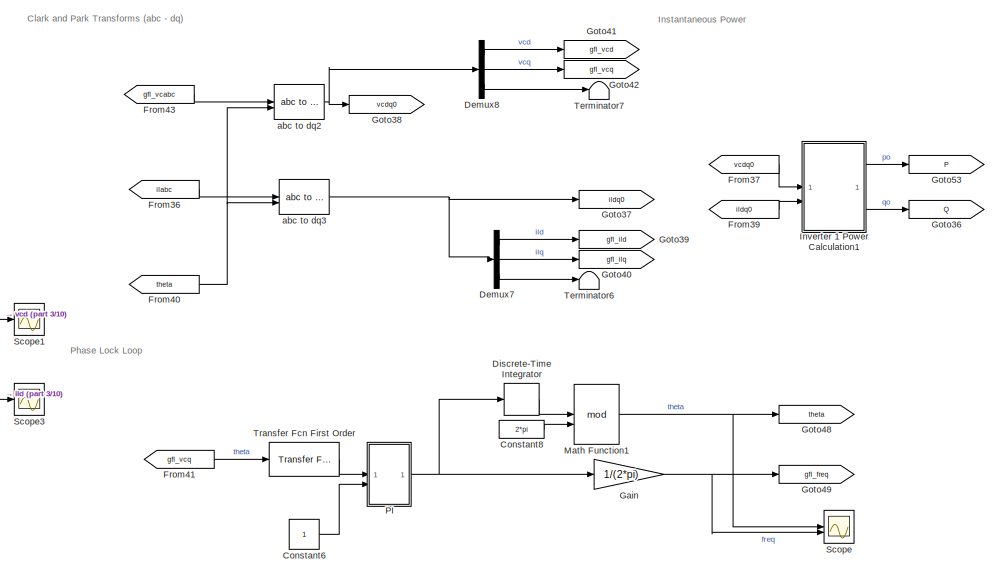
[diagram: root canvas - part 1/10, top center region]
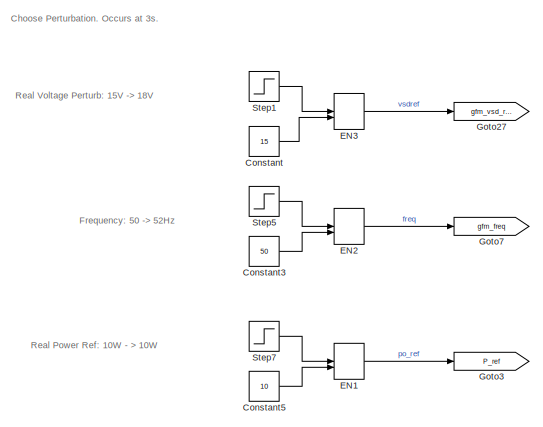
[diagram: root canvas - part 2/10, top right region]
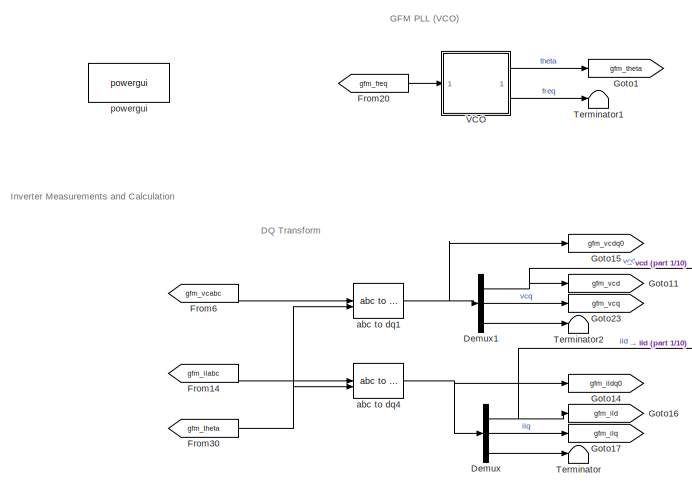
[diagram: root canvas - part 3/10, top left region]
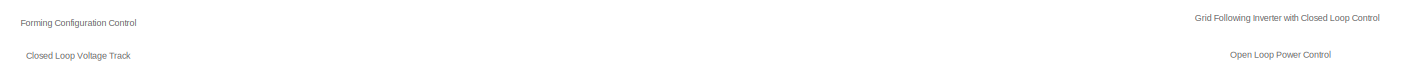
[diagram: root canvas - part 4/10, top left region]
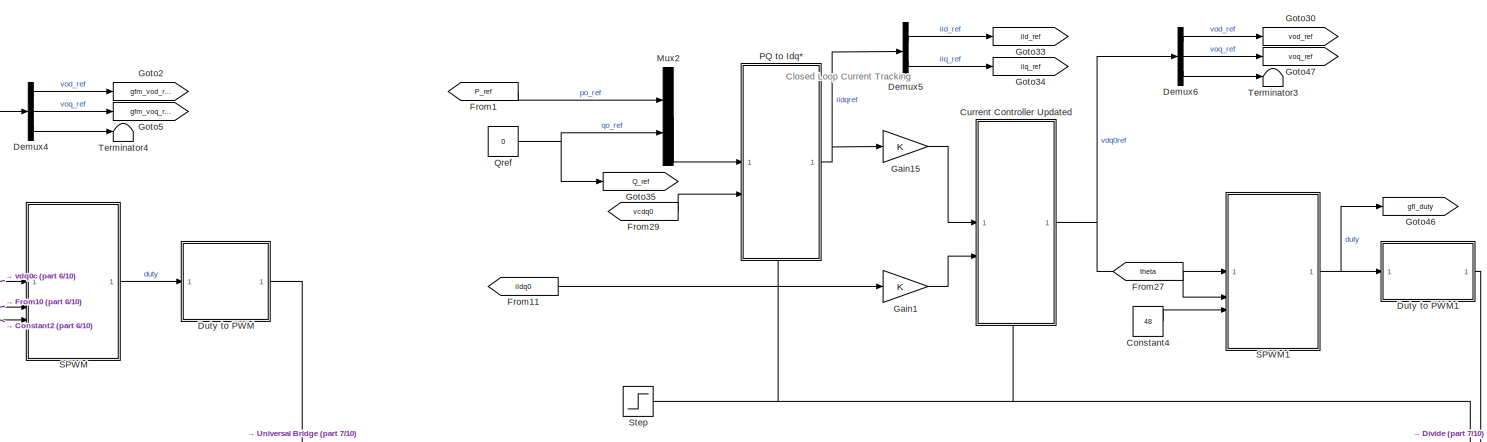
[diagram: root canvas - part 5/10, central region]
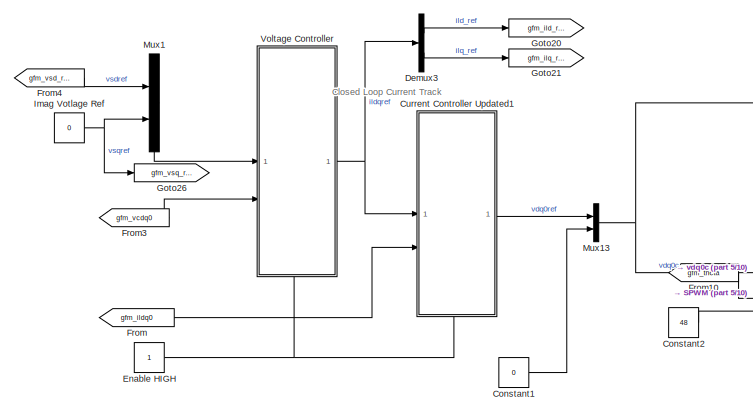
[diagram: root canvas - part 6/10, middle left region]
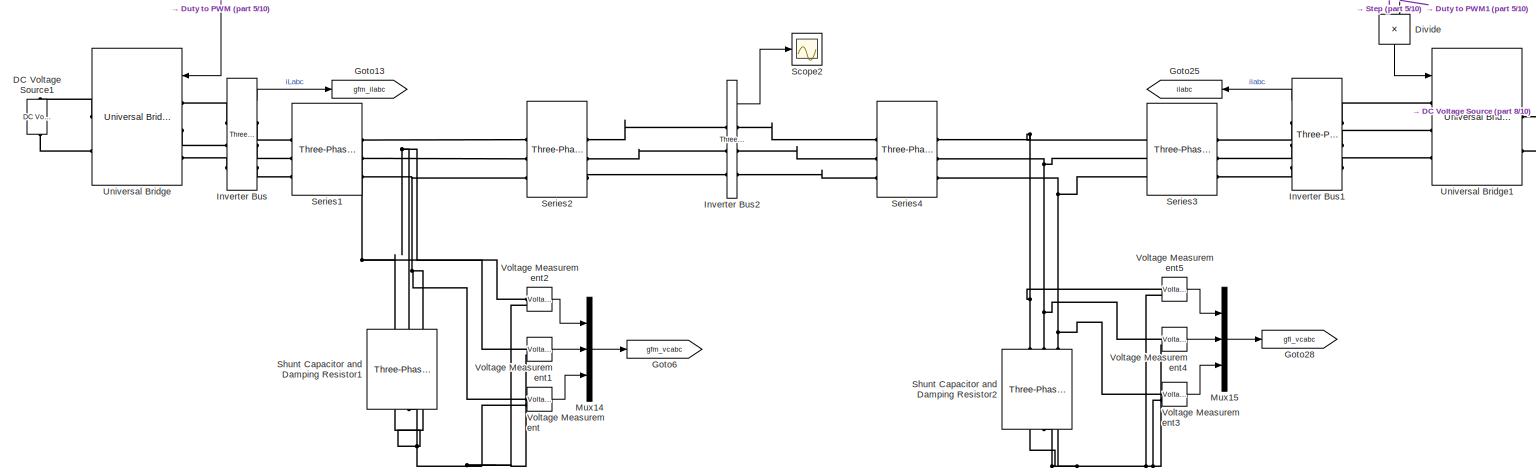
[diagram: root canvas - part 7/10, central region]
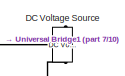
[diagram: root canvas - part 8/10, middle right region]
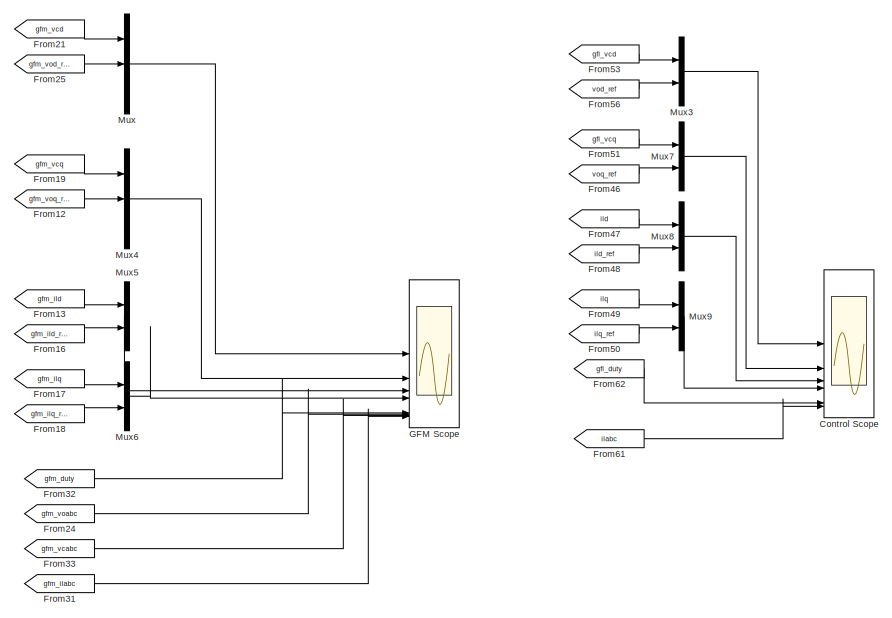
[diagram: root canvas - part 9/10, bottom center region]
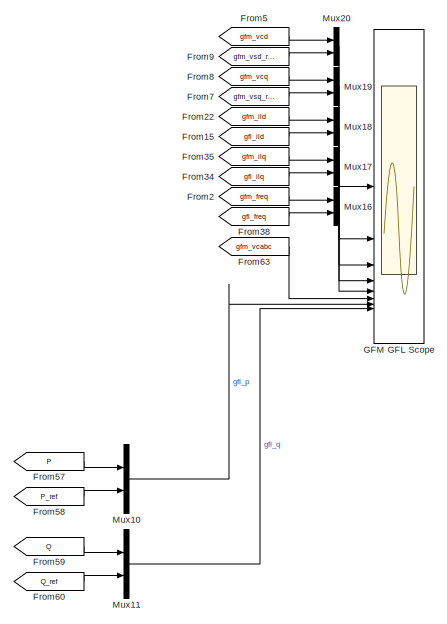
[diagram: root canvas - part 10/10, bottom right region]
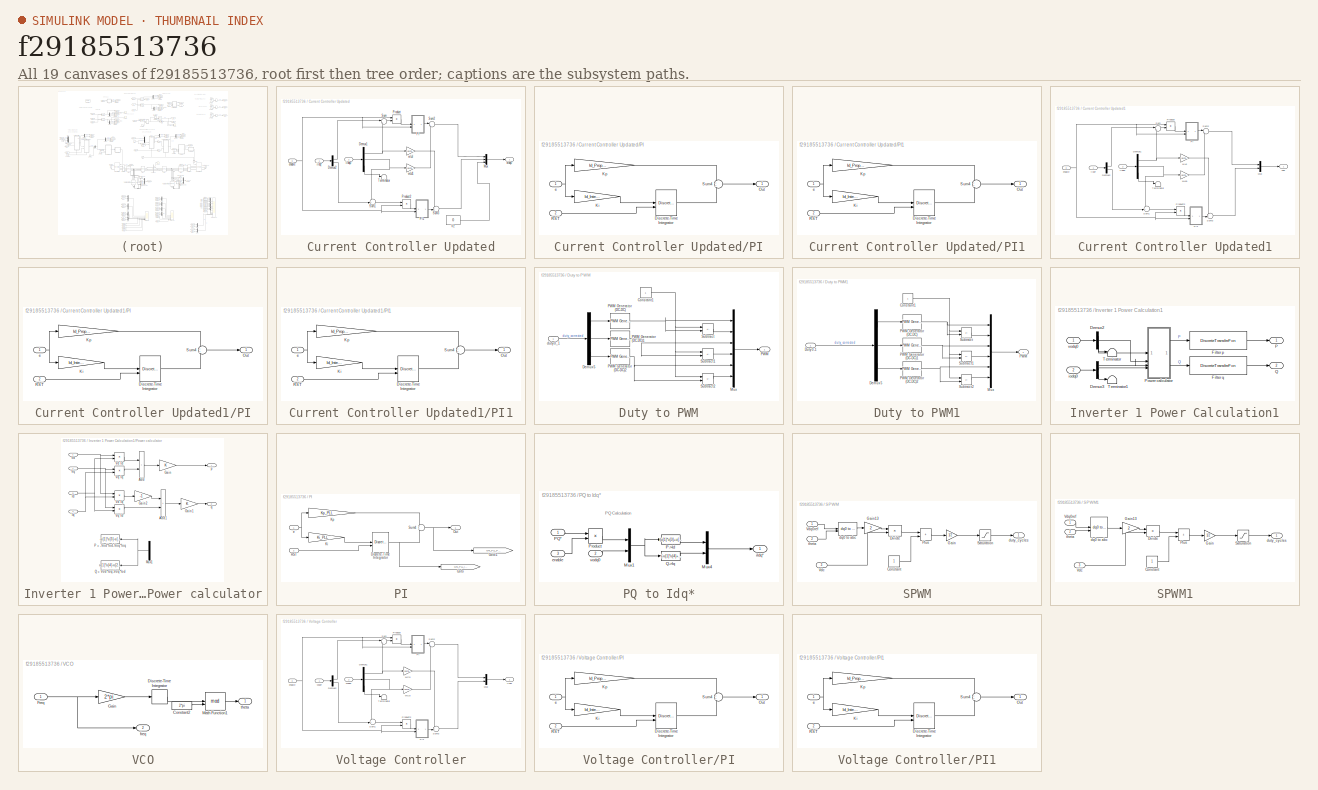
[diagram: thumbnail index - all 19 canvases of the model, root first then tree order]
MODEL slx_f29185513736
KIND model
CONFIG AbsTol = auto
CONFIG EnableMultiTasking = off
CONFIG FixedStep = 1e-6
CONFIG MaxStep = auto
CONFIG MinStep = auto
CONFIG RelTol = 1e-3
CONFIG SampleTimeConstraint = Unconstrained
CONFIG SolverName = FixedStepAuto
CONFIG StartTime = 0.0
CONFIG StopTime = 5
WORKSPACE source: mxarray member
WORKSPACE Fbase = 50
WORKSPACE Filter_Ind = 0.00435
WORKSPACE Fs = 10000
WORKSPACE Series1_L = 0.004
WORKSPACE Series2_L = 0.00035
WORKSPACE Shunt_C = 2.2e-06
WORKSPACE Snubber_C = inf
WORKSPACE Snubber_R = 100000
WORKSPACE Ts = 0.0001
WORKSPACE VDCref = 48
BLOCK [Constant] Constant
  Value = 15
BLOCK [Constant] Constant1
  Value = 0
BLOCK [Constant] Constant2
  Value = 48
BLOCK [Constant] Constant3
  Value = 50
BLOCK [Constant] Constant4
  Value = 48
BLOCK [Constant] Constant5
  Value = 10
BLOCK [Constant] Constant6
BLOCK [Constant] Constant8
  NameLocation = top
  Value = 2*pi
BLOCK [Scope] Control Scope
  Commented = on
  Floating = off
  NumInputPorts = 12
  ScopeSpecificationString = Simulink.scopes.TimeScopeBlockCfg('CurrentConfiguration', extmgr.ConfigurationSet(extmgr.Configuration('Core','General UI',true,'FigureColor',[1 1 1]),extmgr.Configuration('Core','Source UI',true),extmgr.Configuration('Sources','WiredSimulink',true,'DataLoggingSaveFormat','StructureWithTime','DataLoggingVariableName','ScopeData2'),extmgr.Configuration('Visuals','Time Domain',true,'SerializedDispla...<+10465ch>
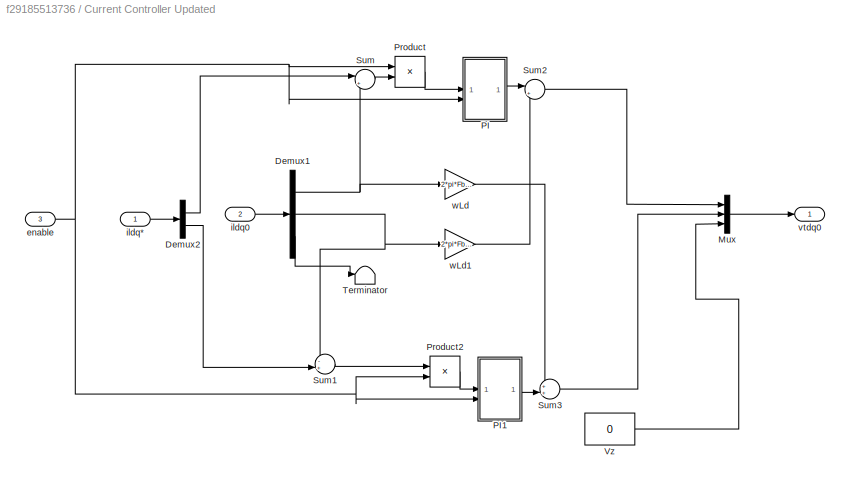
BLOCK [SubSystem] Current Controller Updated
  PortSchema = {"entries":[{"content":{"sides":[{"content":{"connectorIds":["In1","In2"]},"type":"ConnectorPlacement.EquallySpacedRectSide","uuid":"134caf41-c34b-48d0-a71a-522329c40d8c"},{"content":{"connectorIds":["Out1"],"side":"RIGHT"},"type":"ConnectorPlacement.EquallySpacedRectSide","uuid":"de6d8359-09d9-4cb7-8990-bc4b6d48f18d"},{"content":{"connectorIds":[],"side":"TOP"},"type":"ConnectorPlacement.EquallyS...<+395ch>  <repeated x3 — deduplicated; at blocks: Current Controller Updated, Current Controller Updated1, Voltage Controller>
BLOCK [Demux] Current Controller Updated/Demux1
  Outputs = 3
BLOCK [Demux] Current Controller Updated/Demux2
  Outputs = 2
BLOCK [Mux] Current Controller Updated/Mux
  DisplayOption = bar
  Inputs = 3
BLOCK [SubSystem] Current Controller Updated/PI
BLOCK [DiscreteIntegrator] Current Controller Updated/PI/Discrete-Time Integrator
  ExternalReset = either
  ICPrevOutput = DiscIntNeverNeededParam
  ICPrevScaledInput = DiscIntNeverNeededParam
  LimitOutput = on
  LowerSaturationLimit = -20000
  SampleTime = Ts
  UpperSaturationLimit = 20000
  gainval = 1
BLOCK [Gain] Current Controller Updated/PI/Ki
  Gain = Id_Integral
  OutDataTypeStr = Inherit: Same as input
  ParamDataTypeStr = Inherit: Same as input
  SaturateOnIntegerOverflow = on
BLOCK [Gain] Current Controller Updated/PI/Kp
  Gain = Id_Proportional
  OutDataTypeStr = Inherit: Same as input
  ParamDataTypeStr = Inherit: Same as input
  SaturateOnIntegerOverflow = on
BLOCK [Outport] Current Controller Updated/PI/Out
BLOCK [Inport] Current Controller Updated/PI/RST
  Port = 2
BLOCK [Sum] Current Controller Updated/PI/Sum4
  SaturateOnIntegerOverflow = on
BLOCK [Inport] Current Controller Updated/PI/e
BLOCK [SubSystem] Current Controller Updated/PI1
BLOCK [DiscreteIntegrator] Current Controller Updated/PI1/Discrete-Time Integrator
  ExternalReset = either
  ICPrevOutput = DiscIntNeverNeededParam
  ICPrevScaledInput = DiscIntNeverNeededParam
  LimitOutput = on
  LowerSaturationLimit = -20000
  SampleTime = Ts
  UpperSaturationLimit = 20000
  gainval = 1
BLOCK [Gain] Current Controller Updated/PI1/Ki
  Gain = Id_Integral
  OutDataTypeStr = Inherit: Same as input
  ParamDataTypeStr = Inherit: Same as input
  SaturateOnIntegerOverflow = on
BLOCK [Gain] Current Controller Updated/PI1/Kp
  Gain = Id_Proportional
  OutDataTypeStr = Inherit: Same as input
  ParamDataTypeStr = Inherit: Same as input
  SaturateOnIntegerOverflow = on
BLOCK [Outport] Current Controller Updated/PI1/Out
BLOCK [Inport] Current Controller Updated/PI1/RST
  Port = 2
BLOCK [Sum] Current Controller Updated/PI1/Sum4
  SaturateOnIntegerOverflow = on
BLOCK [Inport] Current Controller Updated/PI1/e
BLOCK [Product] Current Controller Updated/Product
  RndMeth = Zero
BLOCK [Product] Current Controller Updated/Product2
  RndMeth = Zero
BLOCK [Sum] Current Controller Updated/Sum
  Inputs = |+-
BLOCK [Sum] Current Controller Updated/Sum1
  Inputs = -+|
BLOCK [Sum] Current Controller Updated/Sum2
  Inputs = |+-
BLOCK [Sum] Current Controller Updated/Sum3
  Inputs = ++|
BLOCK [Terminator] Current Controller Updated/Terminator
BLOCK [Constant] Current Controller Updated/Vz
  Value = 0
BLOCK [Inport] Current Controller Updated/enable
  Port = 3
BLOCK [Inport] Current Controller Updated/ildq*
BLOCK [Inport] Current Controller Updated/ildq0
  Port = 2
BLOCK [Outport] Current Controller Updated/vtdq0
BLOCK [Gain] Current Controller Updated/wLd
  Gain = 2*pi*Fbase*Filter_Ind
BLOCK [Gain] Current Controller Updated/wLd1
  Gain = 2*pi*Fbase*Filter_Ind
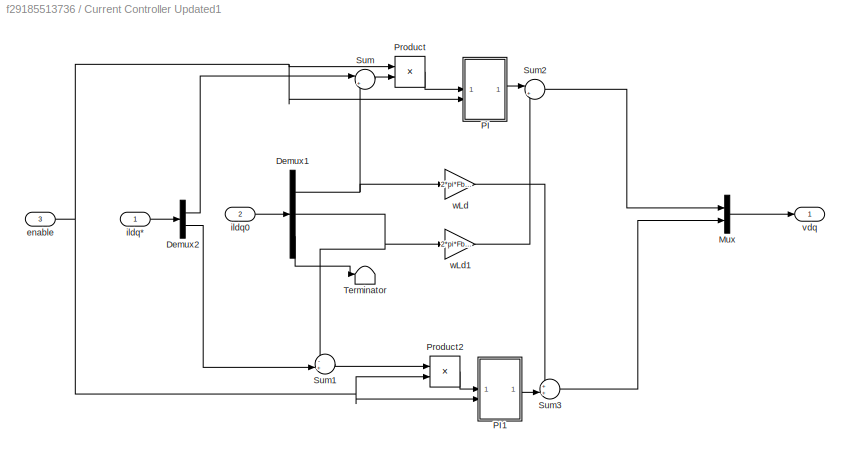
BLOCK [SubSystem] Current Controller Updated1
BLOCK [Demux] Current Controller Updated1/Demux1
  Outputs = 3
BLOCK [Demux] Current Controller Updated1/Demux2
  Outputs = 2
BLOCK [Mux] Current Controller Updated1/Mux
  DisplayOption = bar
  Inputs = 2
BLOCK [SubSystem] Current Controller Updated1/PI
BLOCK [DiscreteIntegrator] Current Controller Updated1/PI/Discrete-Time Integrator
  ExternalReset = either
  ICPrevOutput = DiscIntNeverNeededParam
  ICPrevScaledInput = DiscIntNeverNeededParam
  LimitOutput = on
  LowerSaturationLimit = -20000
  SampleTime = Ts
  UpperSaturationLimit = 20000
  gainval = 1
BLOCK [Gain] Current Controller Updated1/PI/Ki
  Gain = Id_Integral
  OutDataTypeStr = Inherit: Same as input
  ParamDataTypeStr = Inherit: Same as input
  SaturateOnIntegerOverflow = on
BLOCK [Gain] Current Controller Updated1/PI/Kp
  Gain = Id_Proportional
  OutDataTypeStr = Inherit: Same as input
  ParamDataTypeStr = Inherit: Same as input
  SaturateOnIntegerOverflow = on
BLOCK [Outport] Current Controller Updated1/PI/Out
BLOCK [Inport] Current Controller Updated1/PI/RST
  Port = 2
BLOCK [Sum] Current Controller Updated1/PI/Sum4
  SaturateOnIntegerOverflow = on
BLOCK [Inport] Current Controller Updated1/PI/e
BLOCK [SubSystem] Current Controller Updated1/PI1
BLOCK [DiscreteIntegrator] Current Controller Updated1/PI1/Discrete-Time Integrator
  ExternalReset = either
  ICPrevOutput = DiscIntNeverNeededParam
  ICPrevScaledInput = DiscIntNeverNeededParam
  LimitOutput = on
  LowerSaturationLimit = -20000
  SampleTime = Ts
  UpperSaturationLimit = 20000
  gainval = 1
BLOCK [Gain] Current Controller Updated1/PI1/Ki
  Gain = Id_Integral
  OutDataTypeStr = Inherit: Same as input
  ParamDataTypeStr = Inherit: Same as input
  SaturateOnIntegerOverflow = on
BLOCK [Gain] Current Controller Updated1/PI1/Kp
  Gain = Id_Proportional
  OutDataTypeStr = Inherit: Same as input
  ParamDataTypeStr = Inherit: Same as input
  SaturateOnIntegerOverflow = on
BLOCK [Outport] Current Controller Updated1/PI1/Out
BLOCK [Inport] Current Controller Updated1/PI1/RST
  Port = 2
BLOCK [Sum] Current Controller Updated1/PI1/Sum4
  SaturateOnIntegerOverflow = on
BLOCK [Inport] Current Controller Updated1/PI1/e
BLOCK [Product] Current Controller Updated1/Product
  RndMeth = Zero
BLOCK [Product] Current Controller Updated1/Product2
  RndMeth = Zero
BLOCK [Sum] Current Controller Updated1/Sum
  Inputs = |+-
BLOCK [Sum] Current Controller Updated1/Sum1
  Inputs = -+|
BLOCK [Sum] Current Controller Updated1/Sum2
  Inputs = |+-
BLOCK [Sum] Current Controller Updated1/Sum3
  Inputs = ++|
BLOCK [Terminator] Current Controller Updated1/Terminator
BLOCK [Inport] Current Controller Updated1/enable
  Port = 3
BLOCK [Inport] Current Controller Updated1/ildq*
BLOCK [Inport] Current Controller Updated1/ildq0
  Port = 2
BLOCK [Outport] Current Controller Updated1/vdq
BLOCK [Gain] Current Controller Updated1/wLd
  Gain = 2*pi*Fbase*Filter_Ind
BLOCK [Gain] Current Controller Updated1/wLd1
  Gain = 2*pi*Fbase*Filter_Ind
BLOCK [Reference] DC Voltage Source  REF=spsDCVoltageSourceLib/DC Voltage Source
  LibrarySourceBlock = sps_lib/Sources/DC Voltage Source
  SourceBlock = spsDCVoltageSourceLib/DC Voltage Source
  SourceType = DC Voltage Source
BLOCK [Reference] DC Voltage Source1  REF=spsDCVoltageSourceLib/DC Voltage Source
  LibrarySourceBlock = sps_lib/Sources/DC Voltage Source
  SourceBlock = spsDCVoltageSourceLib/DC Voltage Source
  SourceType = DC Voltage Source
BLOCK [Demux] Demux
  Outputs = 3
BLOCK [Demux] Demux1
  Outputs = 3
BLOCK [Demux] Demux3
  Outputs = 2
BLOCK [Demux] Demux4
  Outputs = 3
BLOCK [Demux] Demux5
  Outputs = 2
BLOCK [Demux] Demux6
  Outputs = 3
BLOCK [Demux] Demux7
  Outputs = 3
BLOCK [Demux] Demux8
  Outputs = 3
BLOCK [DiscreteIntegrator] Discrete-Time Integrator
  ICPrevOutput = DiscIntNeverNeededParam
  ICPrevScaledInput = DiscIntNeverNeededParam
  SampleTime = Ts
BLOCK [Product] Divide
  Inputs = **
  NameLocation = left
BLOCK [SubSystem] Duty to PWM
BLOCK [Constant] Duty to PWM/Constant1
BLOCK [Demux] Duty to PWM/Demux5
  Outputs = 3
BLOCK [Mux] Duty to PWM/Mux
  DisplayOption = bar
  Inputs = 6
BLOCK [Outport] Duty to PWM/PWM
BLOCK [Reference] Duty to PWM/PWM Generator (DC-DC)  REF=spsPWMGeneratorDCDCLib/PWM Generator
(DC-DC)
  LibrarySourceBlock = sps_lib/Power Electronics/Power Electronics Control/PWM Generator\n(DC-DC)
  SourceBlock = spsPWMGeneratorDCDCLib/PWM Generator\n(DC-DC)
  SourceType = PWM Generator (DC-DC)
BLOCK [Reference] Duty to PWM/PWM Generator (DC-DC)1  REF=spsPWMGeneratorDCDCLib/PWM Generator
(DC-DC)
  LibrarySourceBlock = sps_lib/Power Electronics/Power Electronics Control/PWM Generator\n(DC-DC)
  SourceBlock = spsPWMGeneratorDCDCLib/PWM Generator\n(DC-DC)
  SourceType = PWM Generator (DC-DC)
BLOCK [Reference] Duty to PWM/PWM Generator (DC-DC)2  REF=spsPWMGeneratorDCDCLib/PWM Generator
(DC-DC)
  LibrarySourceBlock = sps_lib/Power Electronics/Power Electronics Control/PWM Generator\n(DC-DC)
  SourceBlock = spsPWMGeneratorDCDCLib/PWM Generator\n(DC-DC)
  SourceType = PWM Generator (DC-DC)
BLOCK [Sum] Duty to PWM/Subtract
  IconShape = rectangular
  Inputs = +-
BLOCK [Sum] Duty to PWM/Subtract1
  IconShape = rectangular
  Inputs = +-
BLOCK [Sum] Duty to PWM/Subtract2
  IconShape = rectangular
  Inputs = +-
BLOCK [Inport] Duty to PWM/duty0_1
BLOCK [SubSystem] Duty to PWM1
BLOCK [Constant] Duty to PWM1/Constant1
BLOCK [Demux] Duty to PWM1/Demux5
  Outputs = 3
BLOCK [Inport] Duty to PWM1/Duty0-1
BLOCK [Mux] Duty to PWM1/Mux
  DisplayOption = bar
  Inputs = 6
BLOCK [Outport] Duty to PWM1/PWM
BLOCK [Reference] Duty to PWM1/PWM Generator (DC-DC)  REF=spsPWMGeneratorDCDCLib/PWM Generator
(DC-DC)
  LibrarySourceBlock = sps_lib/Power Electronics/Power Electronics Control/PWM Generator\n(DC-DC)
  SourceBlock = spsPWMGeneratorDCDCLib/PWM Generator\n(DC-DC)
  SourceType = PWM Generator (DC-DC)
BLOCK [Reference] Duty to PWM1/PWM Generator (DC-DC)1  REF=spsPWMGeneratorDCDCLib/PWM Generator
(DC-DC)
  LibrarySourceBlock = sps_lib/Power Electronics/Power Electronics Control/PWM Generator\n(DC-DC)
  SourceBlock = spsPWMGeneratorDCDCLib/PWM Generator\n(DC-DC)
  SourceType = PWM Generator (DC-DC)
BLOCK [Reference] Duty to PWM1/PWM Generator (DC-DC)2  REF=spsPWMGeneratorDCDCLib/PWM Generator
(DC-DC)
  LibrarySourceBlock = sps_lib/Power Electronics/Power Electronics Control/PWM Generator\n(DC-DC)
  SourceBlock = spsPWMGeneratorDCDCLib/PWM Generator\n(DC-DC)
  SourceType = PWM Generator (DC-DC)
BLOCK [Sum] Duty to PWM1/Subtract
  IconShape = rectangular
  Inputs = +-
BLOCK [Sum] Duty to PWM1/Subtract1
  IconShape = rectangular
  Inputs = +-
BLOCK [Sum] Duty to PWM1/Subtract2
  IconShape = rectangular
  Inputs = +-
BLOCK [ManualSwitch] EN1
  CurrentSetting = 0
BLOCK [ManualSwitch] EN2
BLOCK [ManualSwitch] EN3
  CurrentSetting = 0
BLOCK [Constant] Enable HIGH
BLOCK [From] From
  GotoTag = gfm_ildq0
BLOCK [From] From1
  CloseFcn = tagdialog Close
  GotoTag = P_ref
  NameLocation = top
BLOCK [From] From10
  CloseFcn = tagdialog Close
  GotoTag = gfm_theta
  NameLocation = top
BLOCK [From] From11
  CloseFcn = tagdialog Close
  GotoTag = ildq0
  NameLocation = top
BLOCK [From] From12
  CloseFcn = tagdialog Close
  Commented = on
  GotoTag = gfm_voq_ref
  NameLocation = top
BLOCK [From] From13
  CloseFcn = tagdialog Close
  Commented = on
  GotoTag = gfm_ild
  NameLocation = top
BLOCK [From] From14
  CloseFcn = tagdialog Close
  GotoTag = gfm_ilabc
  NameLocation = top
BLOCK [From] From15
  CloseFcn = tagdialog Close
  GotoTag = gfl_ild
  NameLocation = top
BLOCK [From] From16
  CloseFcn = tagdialog Close
  Commented = on
  GotoTag = gfm_ild_ref
  NameLocation = top
BLOCK [From] From17
  CloseFcn = tagdialog Close
  Commented = on
  GotoTag = gfm_ilq
  NameLocation = top
BLOCK [From] From18
  CloseFcn = tagdialog Close
  Commented = on
  GotoTag = gfm_ilq_ref
  NameLocation = top
BLOCK [From] From19
  CloseFcn = tagdialog Close
  Commented = on
  GotoTag = gfm_vcq
  NameLocation = top
BLOCK [From] From2
  CloseFcn = tagdialog Close
  GotoTag = gfm_freq
  NameLocation = top
BLOCK [From] From20
  GotoTag = gfm_freq
BLOCK [From] From21
  CloseFcn = tagdialog Close
  Commented = on
  GotoTag = gfm_vcd
  NameLocation = top
BLOCK [From] From22
  CloseFcn = tagdialog Close
  Commented = on
  GotoTag = gfm_ild
  NameLocation = top
BLOCK [From] From24
  CloseFcn = tagdialog Close
  Commented = on
  GotoTag = gfm_voabc
  NameLocation = top
BLOCK [From] From25
  CloseFcn = tagdialog Close
  Commented = on
  GotoTag = gfm_vod_ref
  NameLocation = top
BLOCK [From] From27
  CloseFcn = tagdialog Close
  GotoTag = theta
  NameLocation = top
BLOCK [From] From29
  CloseFcn = tagdialog Close
  GotoTag = vcdq0
  NameLocation = top
BLOCK [From] From3
  CloseFcn = tagdialog Close
  GotoTag = gfm_vcdq0
  NameLocation = top
BLOCK [From] From30
  CloseFcn = tagdialog Close
  GotoTag = gfm_theta
  NameLocation = top
BLOCK [From] From31
  CloseFcn = tagdialog Close
  Commented = on
  GotoTag = gfm_ilabc
  NameLocation = top
BLOCK [From] From32
  CloseFcn = tagdialog Close
  Commented = on
  GotoTag = gfm_duty
  NameLocation = top
BLOCK [From] From33
  CloseFcn = tagdialog Close
  Commented = on
  GotoTag = gfm_vcabc
  NameLocation = top
BLOCK [From] From34
  CloseFcn = tagdialog Close
  GotoTag = gfl_ilq
  NameLocation = top
BLOCK [From] From35
  CloseFcn = tagdialog Close
  Commented = on
  GotoTag = gfm_ilq
  NameLocation = top
BLOCK [From] From36
  CloseFcn = tagdialog Close
  GotoTag = ilabc
  NameLocation = top
BLOCK [From] From37
  CloseFcn = tagdialog Close
  GotoTag = vcdq0
  NameLocation = top
BLOCK [From] From38
  CloseFcn = tagdialog Close
  GotoTag = gfl_freq
  NameLocation = top
BLOCK [From] From39
  CloseFcn = tagdialog Close
  GotoTag = ildq0
  NameLocation = top
BLOCK [From] From4
  CloseFcn = tagdialog Close
  GotoTag = gfm_vsd_ref
  NameLocation = top
BLOCK [From] From40
  CloseFcn = tagdialog Close
  GotoTag = theta
  NameLocation = top
BLOCK [From] From41
  CloseFcn = tagdialog Close
  GotoTag = gfl_vcq
  NameLocation = top
BLOCK [From] From43
  CloseFcn = tagdialog Close
  GotoTag = gfl_vcabc
  NameLocation = top
BLOCK [From] From46
  CloseFcn = tagdialog Close
  Commented = on
  GotoTag = voq_ref
  NameLocation = top
BLOCK [From] From47
  CloseFcn = tagdialog Close
  Commented = on
  GotoTag = ild
  NameLocation = top
BLOCK [From] From48
  CloseFcn = tagdialog Close
  Commented = on
  GotoTag = ild_ref
  NameLocation = top
BLOCK [From] From49
  CloseFcn = tagdialog Close
  Commented = on
  GotoTag = ilq
  NameLocation = top
BLOCK [From] From5
  CloseFcn = tagdialog Close
  GotoTag = gfm_vcd
  NameLocation = top
BLOCK [From] From50
  CloseFcn = tagdialog Close
  Commented = on
  GotoTag = ilq_ref
  NameLocation = top
BLOCK [From] From51
  CloseFcn = tagdialog Close
  Commented = on
  GotoTag = gfl_vcq
  NameLocation = top
BLOCK [From] From53
  CloseFcn = tagdialog Close
  Commented = on
  GotoTag = gfl_vcd
  NameLocation = top
BLOCK [From] From56
  CloseFcn = tagdialog Close
  Commented = on
  GotoTag = vod_ref
  NameLocation = top
BLOCK [From] From57
  CloseFcn = tagdialog Close
  GotoTag = P
  NameLocation = top
BLOCK [From] From58
  CloseFcn = tagdialog Close
  GotoTag = P_ref
  NameLocation = top
BLOCK [From] From59
  CloseFcn = tagdialog Close
  GotoTag = Q
  NameLocation = top
BLOCK [From] From6
  CloseFcn = tagdialog Close
  GotoTag = gfm_vcabc
  NameLocation = top
BLOCK [From] From60
  CloseFcn = tagdialog Close
  GotoTag = Q_ref
  NameLocation = top
BLOCK [From] From61
  CloseFcn = tagdialog Close
  Commented = on
  GotoTag = ilabc
  NameLocation = top
BLOCK [From] From62
  CloseFcn = tagdialog Close
  Commented = on
  GotoTag = gfl_duty
  NameLocation = top
BLOCK [From] From63
  CloseFcn = tagdialog Close
  GotoTag = gfm_vcabc
  NameLocation = top
BLOCK [From] From7
  CloseFcn = tagdialog Close
  GotoTag = gfm_vsq_ref
  NameLocation = top
BLOCK [From] From8
  CloseFcn = tagdialog Close
  GotoTag = gfm_vcq
  NameLocation = top
BLOCK [From] From9
  CloseFcn = tagdialog Close
  GotoTag = gfm_vsd_ref
  NameLocation = top
BLOCK [Scope] GFM GFL Scope
  Floating = off
  NumInputPorts = 8
  ScopeSpecificationString = Simulink.scopes.TimeScopeBlockCfg('CurrentConfiguration', extmgr.ConfigurationSet(extmgr.Configuration('Core','General UI',true,'FigureColor',[1 1 1],'DisplayFullSourceName',true),extmgr.Configuration('Core','Source UI',true),extmgr.Configuration('Sources','WiredSimulink',true,'DataLoggingSaveFormat','StructureWithTime','DataLoggingVariableName','Dual_Data_Sim','DataLoggingMaxPoints','20000','Data...<+7878ch>
BLOCK [Scope] GFM Scope
  Commented = on
  Floating = off
  NumInputPorts = 12
  ScopeSpecificationString = Simulink.scopes.TimeScopeBlockCfg('CurrentConfiguration', extmgr.ConfigurationSet(extmgr.Configuration('Core','General UI',true,'FigureColor',[1 1 1]),extmgr.Configuration('Core','Source UI',true),extmgr.Configuration('Sources','WiredSimulink',true,'DataLoggingSaveFormat','StructureWithTime','DataLoggingVariableName','ScopeData1'),extmgr.Configuration('Visuals','Time Domain',true,'SerializedDispla...<+10431ch>
BLOCK [Gain] Gain
  Gain = 1/(2*pi)
BLOCK [Gain] Gain1
BLOCK [Gain] Gain15
BLOCK [Goto] Goto1
  GotoTag = gfm_theta
BLOCK [Goto] Goto11
  GotoTag = gfm_vcd
BLOCK [Goto] Goto13
  GotoTag = gfm_ilabc
BLOCK [Goto] Goto14
  GotoTag = gfm_ildq0
BLOCK [Goto] Goto15
  GotoTag = gfm_vcdq0
BLOCK [Goto] Goto16
  GotoTag = gfm_ild
BLOCK [Goto] Goto17
  GotoTag = gfm_ilq
BLOCK [Goto] Goto2
  GotoTag = gfm_vod_ref
BLOCK [Goto] Goto20
  GotoTag = gfm_ild_ref
BLOCK [Goto] Goto21
  GotoTag = gfm_ilq_ref
BLOCK [Goto] Goto23
  GotoTag = gfm_vcq
BLOCK [Goto] Goto25
  GotoTag = ilabc
BLOCK [Goto] Goto26
  GotoTag = gfm_vsq_ref
BLOCK [Goto] Goto27
  GotoTag = gfm_vsd_ref
BLOCK [Goto] Goto28
  GotoTag = gfl_vcabc
BLOCK [Goto] Goto3
  GotoTag = P_ref
BLOCK [Goto] Goto30
  GotoTag = vod_ref
BLOCK [Goto] Goto33
  GotoTag = ild_ref
BLOCK [Goto] Goto34
  GotoTag = ilq_ref
BLOCK [Goto] Goto35
  GotoTag = Q_ref
BLOCK [Goto] Goto36
  GotoTag = Q
BLOCK [Goto] Goto37
  GotoTag = ildq0
BLOCK [Goto] Goto38
  GotoTag = vcdq0
BLOCK [Goto] Goto39
  GotoTag = gfl_ild
BLOCK [Goto] Goto40
  GotoTag = gfl_ilq
BLOCK [Goto] Goto41
  GotoTag = gfl_vcd
BLOCK [Goto] Goto42
  GotoTag = gfl_vcq
BLOCK [Goto] Goto46
  GotoTag = gfl_duty
BLOCK [Goto] Goto47
  GotoTag = voq_ref
BLOCK [Goto] Goto48
  GotoTag = theta
BLOCK [Goto] Goto49
  GotoTag = gfl_freq
BLOCK [Goto] Goto5
  GotoTag = gfm_voq_ref
BLOCK [Goto] Goto53
  GotoTag = P
BLOCK [Goto] Goto6
  GotoTag = gfm_vcabc
BLOCK [Goto] Goto7
  GotoTag = gfm_freq
BLOCK [Constant] Imag Votlage Ref
  Value = 0
BLOCK [SubSystem] Inverter 1 Power Calculation1
BLOCK [Demux] Inverter 1 Power Calculation1/Demux2
  Outputs = 3
BLOCK [Demux] Inverter 1 Power Calculation1/Demux3
  Outputs = 3
BLOCK [DiscreteTransferFcn] Inverter 1 Power Calculation1/Filter p
  Denominator = [1 ((250*2*pi*Ts)-1)]
  InputPortMap = u0
  Numerator = 250*2*pi*Ts
  SampleTime = Ts
BLOCK [DiscreteTransferFcn] Inverter 1 Power Calculation1/Filter q
  Denominator = [1 ((250*2*pi*Ts)-1)]
  InputPortMap = u0
  Numerator = 250*2*pi*Ts
  SampleTime = Ts
BLOCK [Outport] Inverter 1 Power Calculation1/P
BLOCK [SubSystem] Inverter 1 Power Calculation1/Power calculator
BLOCK [Sum] Inverter 1 Power Calculation1/Power calculator/Add
  IconShape = rectangular
BLOCK [Sum] Inverter 1 Power Calculation1/Power calculator/Add1
  IconShape = rectangular
BLOCK [Gain] Inverter 1 Power Calculation1/Power calculator/Gain
BLOCK [Gain] Inverter 1 Power Calculation1/Power calculator/Gain1
BLOCK [Gain] Inverter 1 Power Calculation1/Power calculator/Gain2
  Gain = -1
BLOCK [Inport] Inverter 1 Power Calculation1/Power calculator/Id
  NameLocation = top
  Port = 3
BLOCK [Inport] Inverter 1 Power Calculation1/Power calculator/Iq
  NameLocation = top
  Port = 4
BLOCK [Mux] Inverter 1 Power Calculation1/Power calculator/Mux1
  Commented = on
  DisplayOption = bar
  NameLocation = top
BLOCK [Fcn] Inverter 1 Power Calculation1/Power calculator/P = -Vod*Iod-Voq*Ioq
  Commented = on
  Expr = -u[1]*u[3]-u[2]*u[4]
  NameLocation = top
BLOCK [Fcn] Inverter 1 Power Calculation1/Power calculator/Q = Vod*Ioq-Voq*Iod
  Commented = on
  Expr = u[1]*u[4]-u[2]*u[3]
  NameLocation = top
BLOCK [Inport] Inverter 1 Power Calculation1/Power calculator/Vd
  NameLocation = top
BLOCK [Product] Inverter 1 Power Calculation1/Power calculator/Vd Id
BLOCK [Product] Inverter 1 Power Calculation1/Power calculator/Vd Iq
BLOCK [Inport] Inverter 1 Power Calculation1/Power calculator/Vq
  NameLocation = top
  Port = 2
BLOCK [Product] Inverter 1 Power Calculation1/Power calculator/Vq Id
BLOCK [Product] Inverter 1 Power Calculation1/Power calculator/Vq Iq
BLOCK [Outport] Inverter 1 Power Calculation1/Power calculator/p
  NameLocation = top
BLOCK [Outport] Inverter 1 Power Calculation1/Power calculator/q
  NameLocation = top
  Port = 2
BLOCK [Outport] Inverter 1 Power Calculation1/Q
  Port = 2
BLOCK [Terminator] Inverter 1 Power Calculation1/Terminator
BLOCK [Terminator] Inverter 1 Power Calculation1/Terminator1
BLOCK [Inport] Inverter 1 Power Calculation1/iodq0
  Port = 2
BLOCK [Inport] Inverter 1 Power Calculation1/vodq0
BLOCK [Reference] Inverter Bus  REF=spsThreePhaseVIMeasurementLib/Three-Phase
V-I Measurement
  SourceBlock = spsThreePhaseVIMeasurementLib/Three-Phase\nV-I Measurement
  SourceType = Three-Phase VI Measurement
BLOCK [Reference] Inverter Bus1  REF=spsThreePhaseVIMeasurementLib/Three-Phase
V-I Measurement
  SourceBlock = spsThreePhaseVIMeasurementLib/Three-Phase\nV-I Measurement
  SourceType = Three-Phase VI Measurement
BLOCK [Reference] Inverter Bus2  REF=spsThreePhaseVIMeasurementLib/Three-Phase
V-I Measurement
  SourceBlock = spsThreePhaseVIMeasurementLib/Three-Phase\nV-I Measurement
  SourceType = Three-Phase VI Measurement
BLOCK [Math] Math Function1
  Operator = mod
  SignedPower = on
BLOCK [Mux] Mux
  Commented = on
  DisplayOption = bar
  Inputs = 3
BLOCK [Mux] Mux1
  DisplayOption = bar
  Inputs = 2
BLOCK [Mux] Mux10
  DisplayOption = bar
  Inputs = 2
BLOCK [Mux] Mux11
  DisplayOption = bar
  Inputs = 2
BLOCK [Mux] Mux13
  DisplayOption = bar
  Inputs = 2
BLOCK [Mux] Mux14
  DisplayOption = bar
  Inputs = 3
BLOCK [Mux] Mux15
  DisplayOption = bar
  Inputs = 3
BLOCK [Mux] Mux16
  DisplayOption = bar
  Inputs = 2
BLOCK [Mux] Mux17
  DisplayOption = bar
  Inputs = 2
BLOCK [Mux] Mux18
  DisplayOption = bar
  Inputs = 2
BLOCK [Mux] Mux19
  DisplayOption = bar
  Inputs = 2
BLOCK [Mux] Mux2
  DisplayOption = bar
  Inputs = 2
BLOCK [Mux] Mux20
  DisplayOption = bar
  Inputs = 2
BLOCK [Mux] Mux3
  Commented = on
  DisplayOption = bar
  Inputs = 2
BLOCK [Mux] Mux4
  Commented = on
  DisplayOption = bar
  Inputs = 3
BLOCK [Mux] Mux5
  Commented = on
  DisplayOption = bar
  Inputs = 2
BLOCK [Mux] Mux6
  Commented = on
  DisplayOption = bar
  Inputs = 2
BLOCK [Mux] Mux7
  Commented = on
  DisplayOption = bar
  Inputs = 2
BLOCK [Mux] Mux8
  Commented = on
  DisplayOption = bar
  Inputs = 2
BLOCK [Mux] Mux9
  Commented = on
  DisplayOption = bar
  Inputs = 2
BLOCK [SubSystem] PI
BLOCK [DiscreteIntegrator] PI/Discrete-Time Integrator
  ExternalReset = either
  ICPrevOutput = DiscIntNeverNeededParam
  ICPrevScaledInput = DiscIntNeverNeededParam
  InitialCondition = 2*pi*Fbase
  LimitOutput = on
  LowerSaturationLimit = 2*pi*Fbase - IntSat_PLL
  SampleTime = Ts
  UpperSaturationLimit = 2*pi*Fbase + IntSat_PLL
  gainval = 1
BLOCK [Goto] PI/Goto
  GotoTag = GFL_PLL_Int_Out
  TagVisibility = global
BLOCK [Goto] PI/Goto1
  GotoTag = GFL_PLL_PI_Out
  TagVisibility = global
BLOCK [Gain] PI/Ki
  Gain = Ki_PLL
  OutDataTypeStr = Inherit: Same as input
  ParamDataTypeStr = Inherit: Same as input
  SaturateOnIntegerOverflow = on
BLOCK [Gain] PI/Kp
  Gain = Kp_PLL
  OutDataTypeStr = Inherit: Same as input
  ParamDataTypeStr = Inherit: Same as input
  SaturateOnIntegerOverflow = on
BLOCK [Outport] PI/Out
BLOCK [Inport] PI/RST
  Port = 2
BLOCK [Sum] PI/Sum4
  SaturateOnIntegerOverflow = on
BLOCK [Inport] PI/e
BLOCK [SubSystem] PQ to Idq*
  PortSchema = {"entries":[{"content":{"sides":[{"content":{"connectorIds":["In1","In2"]},"type":"ConnectorPlacement.EquallySpacedRectSide","uuid":"5271b3ed-46a4-4113-9b69-458d23b85fa2"},{"content":{"connectorIds":["Out1"],"side":"RIGHT"},"type":"ConnectorPlacement.EquallySpacedRectSide","uuid":"00fb532b-4b50-4607-a5c4-cd74a5a5fc42"},{"content":{"connectorIds":[],"side":"TOP"},"type":"ConnectorPlacement.EquallyS...<+395ch>
BLOCK [Mux] PQ to Idq*/Mux1
  DisplayOption = bar
  Inputs = 2
BLOCK [Mux] PQ to Idq*/Mux4
  DisplayOption = bar
  Inputs = 2
BLOCK [Fcn] PQ to Idq*/P->Id
  Expr = (u[1]*u[3]+u[2]*u[4])/(u[3]*u[3]+u[4]*u[4])
BLOCK [Inport] PQ to Idq*/PQ*
BLOCK [Product] PQ to Idq*/Product
  RndMeth = Zero
BLOCK [Fcn] PQ to Idq*/Q->Iq
  Expr = -(-u[1]*u[4]+u[2]*u[3])/(u[3]*u[3]+u[4]*u[4])
BLOCK [Inport] PQ to Idq*/enable
  Port = 3
BLOCK [Outport] PQ to Idq*/iIdq*
BLOCK [Inport] PQ to Idq*/vodq0
  Port = 2
BLOCK [Constant] Qref
  Value = 0
BLOCK [SubSystem] SPWM
BLOCK [Constant] SPWM/Constant
BLOCK [Product] SPWM/Divide
  Inputs = */
BLOCK [Gain] SPWM/Gain
  Gain = 1/2
BLOCK [Gain] SPWM/Gain13
  Gain = 2
BLOCK [Sum] SPWM/Plus
  IconShape = rectangular
BLOCK [Saturate] SPWM/Saturation
  LowerLimit = 0.1
  UpperLimit = 0.9
BLOCK [Inport] SPWM/Vdc
  Port = 3
BLOCK [Inport] SPWM/Vdq0ref
BLOCK [Reference] SPWM/dq0 to abc  REF=spsdq0toabcLib/dq0 to abc
  LibrarySourceBlock = sps_lib/Control/dq0 to abc
  SourceBlock = spsdq0toabcLib/dq0 to abc
  SourceType = dq0 to abc Transformation
BLOCK [Outport] SPWM/duty_cycles
BLOCK [Inport] SPWM/theta
  Port = 2
BLOCK [SubSystem] SPWM1
BLOCK [Constant] SPWM1/Constant
BLOCK [Product] SPWM1/Divide
  Inputs = */
BLOCK [Gain] SPWM1/Gain
  Gain = 1/2
BLOCK [Gain] SPWM1/Gain13
  Gain = 2
BLOCK [Sum] SPWM1/Plus
  IconShape = rectangular
BLOCK [Saturate] SPWM1/Saturation
  LowerLimit = 0.1
  UpperLimit = 0.9
BLOCK [Inport] SPWM1/Vdc
  Port = 3
BLOCK [Inport] SPWM1/Vdq0ref
  NameLocation = top
BLOCK [Reference] SPWM1/dq0 to abc  REF=spsdq0toabcLib/dq0 to abc
  LibrarySourceBlock = sps_lib/Control/dq0 to abc
  SourceBlock = spsdq0toabcLib/dq0 to abc
  SourceType = dq0 to abc Transformation
BLOCK [Outport] SPWM1/duty_cycles
BLOCK [Inport] SPWM1/theta
  Port = 2
BLOCK [Scope] Scope
  Floating = off
  NumInputPorts = 2
  ScopeSpecificationString = Simulink.scopes.TimeScopeBlockCfg('CurrentConfiguration', extmgr.ConfigurationSet(extmgr.Configuration('Core','General UI',true),extmgr.Configuration('Core','Source UI',true),extmgr.Configuration('Sources','WiredSimulink',true,'DataLoggingVariableName','ScopeData1'),extmgr.Configuration('Visuals','Time Domain',true,'SerializedDisplays',{struct('MinYLimReal','-0.78539','MaxYLimReal','7.06848','YLab...<+2012ch>
BLOCK [Scope] Scope1
  Commented = on
  Floating = off
  NumInputPorts = 1
  ScopeSpecificationString = Simulink.scopes.TimeScopeBlockCfg('CurrentConfiguration', extmgr.ConfigurationSet(extmgr.Configuration('Core','General UI',true),extmgr.Configuration('Core','Source UI',true),extmgr.Configuration('Sources','WiredSimulink',true,'DataLoggingVariableName','ScopeData1'),extmgr.Configuration('Visuals','Time Domain',true,'SerializedDisplays',{struct('MinYLimReal','-2.65984','MaxYLimReal','23.52686','YLa...<+1409ch>
BLOCK [Scope] Scope2
  Floating = off
  NumInputPorts = 1
  ScopeSpecificationString = Simulink.scopes.TimeScopeBlockCfg('CurrentConfiguration', extmgr.ConfigurationSet(extmgr.Configuration('Core','General UI',true),extmgr.Configuration('Core','Source UI',true),extmgr.Configuration('Sources','WiredSimulink',true,'DataLoggingVariableName','ScopeData2'),extmgr.Configuration('Visuals','Time Domain',true,'SerializedDisplays',{struct('MinYLimReal','-42.92173','MaxYLimReal','43.31165','YL...<+1416ch>
BLOCK [Scope] Scope3
  Commented = on
  Floating = off
  NumInputPorts = 1
  ScopeSpecificationString = Simulink.scopes.TimeScopeBlockCfg('CurrentConfiguration', extmgr.ConfigurationSet(extmgr.Configuration('Core','General UI',true),extmgr.Configuration('Core','Source UI',true),extmgr.Configuration('Sources','WiredSimulink',true,'DataLoggingVariableName','ScopeData3'),extmgr.Configuration('Visuals','Time Domain',true,'SerializedDisplays',{struct('MinYLimReal','-1.70225','MaxYLimReal','1.98556','YLab...<+1391ch>
BLOCK [Reference] Series1  REF=spsThreePhaseSeriesRLCBranchLib/Three-Phase
Series RLC Branch
  AttributesFormatString = \n
  SourceBlock = spsThreePhaseSeriesRLCBranchLib/Three-Phase\nSeries RLC Branch
  SourceType = Three-Phase Series RLC Branch
BLOCK [Reference] Series2  REF=spsThreePhaseSeriesRLCBranchLib/Three-Phase
Series RLC Branch
  AttributesFormatString = \n
  SourceBlock = spsThreePhaseSeriesRLCBranchLib/Three-Phase\nSeries RLC Branch
  SourceType = Three-Phase Series RLC Branch
BLOCK [Reference] Series3  REF=spsThreePhaseSeriesRLCBranchLib/Three-Phase
Series RLC Branch
  AttributesFormatString = \n
  SourceBlock = spsThreePhaseSeriesRLCBranchLib/Three-Phase\nSeries RLC Branch
  SourceType = Three-Phase Series RLC Branch
BLOCK [Reference] Series4  REF=spsThreePhaseSeriesRLCBranchLib/Three-Phase
Series RLC Branch
  AttributesFormatString = \n
  SourceBlock = spsThreePhaseSeriesRLCBranchLib/Three-Phase\nSeries RLC Branch
  SourceType = Three-Phase Series RLC Branch
BLOCK [Reference] Shunt Capacitor and Damping Resistor1  REF=spsThreePhaseSeriesRLCBranchLib/Three-Phase
Series RLC Branch
  AttributesFormatString = \n
  NameLocation = left
  SourceBlock = spsThreePhaseSeriesRLCBranchLib/Three-Phase\nSeries RLC Branch
  SourceType = Three-Phase Series RLC Branch
BLOCK [Reference] Shunt Capacitor and Damping Resistor2  REF=spsThreePhaseSeriesRLCBranchLib/Three-Phase
Series RLC Branch
  AttributesFormatString = \n
  NameLocation = left
  SourceBlock = spsThreePhaseSeriesRLCBranchLib/Three-Phase\nSeries RLC Branch
  SourceType = Three-Phase Series RLC Branch
BLOCK [Step] Step
  SampleTime = 0
BLOCK [Step] Step1
  After = 18
  Before = 15
  Time = 3
BLOCK [Step] Step5
  After = 52
  Before = 50
  SampleTime = 0
  Time = 3
BLOCK [Step] Step7
  After = -10
  Before = 10
  Time = 3
BLOCK [Terminator] Terminator
BLOCK [Terminator] Terminator1
BLOCK [Terminator] Terminator2
BLOCK [Terminator] Terminator3
BLOCK [Terminator] Terminator4
BLOCK [Terminator] Terminator6
BLOCK [Terminator] Terminator7
BLOCK [Reference] Transfer Fcn First Order  REF=simulink/Discrete/Transfer Fcn
First Order
  SourceBlock = simulink/Discrete/Transfer Fcn\nFirst Order
  SourceType = First Order Transfer Fcn
BLOCK [Reference] Universal Bridge  REF=spsUniversalBridgeLib/Universal Bridge
  SourceBlock = spsUniversalBridgeLib/Universal Bridge
  SourceType = Universal Bridge
BLOCK [Reference] Universal Bridge1  REF=spsUniversalBridgeLib/Universal Bridge
  SourceBlock = spsUniversalBridgeLib/Universal Bridge
  SourceType = Universal Bridge
BLOCK [SubSystem] VCO
BLOCK [Constant] VCO/Constant2
  NameLocation = top
  Value = 2*pi
BLOCK [DiscreteIntegrator] VCO/Discrete-Time Integrator
  ICPrevOutput = DiscIntNeverNeededParam
  ICPrevScaledInput = DiscIntNeverNeededParam
  SampleTime = Ts
BLOCK [Inport] VCO/Freq
BLOCK [Gain] VCO/Gain
  Gain = 2*pi
BLOCK [Math] VCO/Math Function1
  Operator = mod
  SignedPower = on
BLOCK [Outport] VCO/freq
  Port = 2
BLOCK [Outport] VCO/theta
BLOCK [SubSystem] Voltage Controller
BLOCK [Demux] Voltage Controller/Demux1
  Outputs = 3
BLOCK [Demux] Voltage Controller/Demux2
  Outputs = 2
BLOCK [Mux] Voltage Controller/Mux
  DisplayOption = bar
  Inputs = 2
BLOCK [SubSystem] Voltage Controller/PI
BLOCK [DiscreteIntegrator] Voltage Controller/PI/Discrete-Time Integrator
  ExternalReset = either
  ICPrevOutput = DiscIntNeverNeededParam
  ICPrevScaledInput = DiscIntNeverNeededParam
  LimitOutput = on
  LowerSaturationLimit = -2000
  SampleTime = Ts
  UpperSaturationLimit = 2000
  gainval = 1
BLOCK [Gain] Voltage Controller/PI/Ki
  Gain = Id_Integral
  OutDataTypeStr = Inherit: Same as input
  ParamDataTypeStr = Inherit: Same as input
  SaturateOnIntegerOverflow = on
BLOCK [Gain] Voltage Controller/PI/Kp
  Gain = Id_Proportional
  OutDataTypeStr = Inherit: Same as input
  ParamDataTypeStr = Inherit: Same as input
  SaturateOnIntegerOverflow = on
BLOCK [Outport] Voltage Controller/PI/Out
BLOCK [Inport] Voltage Controller/PI/RST
  Port = 2
BLOCK [Sum] Voltage Controller/PI/Sum4
  SaturateOnIntegerOverflow = on
BLOCK [Inport] Voltage Controller/PI/e
BLOCK [SubSystem] Voltage Controller/PI1
BLOCK [DiscreteIntegrator] Voltage Controller/PI1/Discrete-Time Integrator
  ExternalReset = either
  ICPrevOutput = DiscIntNeverNeededParam
  ICPrevScaledInput = DiscIntNeverNeededParam
  LimitOutput = on
  LowerSaturationLimit = -2000
  SampleTime = Ts
  UpperSaturationLimit = 2000
  gainval = 1
BLOCK [Gain] Voltage Controller/PI1/Ki
  Gain = Id_Integral
  OutDataTypeStr = Inherit: Same as input
  ParamDataTypeStr = Inherit: Same as input
  SaturateOnIntegerOverflow = on
BLOCK [Gain] Voltage Controller/PI1/Kp
  Gain = Id_Proportional
  OutDataTypeStr = Inherit: Same as input
  ParamDataTypeStr = Inherit: Same as input
  SaturateOnIntegerOverflow = on
BLOCK [Outport] Voltage Controller/PI1/Out
BLOCK [Inport] Voltage Controller/PI1/RST
  Port = 2
BLOCK [Sum] Voltage Controller/PI1/Sum4
  SaturateOnIntegerOverflow = on
BLOCK [Inport] Voltage Controller/PI1/e
BLOCK [Product] Voltage Controller/Product
  RndMeth = Zero
BLOCK [Product] Voltage Controller/Product2
  RndMeth = Zero
BLOCK [Sum] Voltage Controller/Sum
  Inputs = |+-
BLOCK [Sum] Voltage Controller/Sum1
  Inputs = -+|
BLOCK [Sum] Voltage Controller/Sum2
  Inputs = |+-
BLOCK [Sum] Voltage Controller/Sum3
  Inputs = ++|
BLOCK [Terminator] Voltage Controller/Terminator
BLOCK [Inport] Voltage Controller/enable
  Port = 3
BLOCK [Outport] Voltage Controller/ildq*
BLOCK [Inport] Voltage Controller/vcdq0
  Port = 2
BLOCK [Inport] Voltage Controller/vsdq*
BLOCK [Gain] Voltage Controller/wCd
  Gain = 2*pi*Fbase*Shunt_C
BLOCK [Gain] Voltage Controller/wCq
  Gain = 2*pi*Fbase*Shunt_C
BLOCK [Reference] Voltage Measurement  REF=spsVoltageMeasurementLib/Voltage Measurement
  LibrarySourceBlock = sps_lib/Sensors and Measurements/Voltage Measurement
  SourceBlock = spsVoltageMeasurementLib/Voltage Measurement
  SourceType = Voltage Measurement
  UserDataPersistent = on
BLOCK [Reference] Voltage Measurement1  REF=spsVoltageMeasurementLib/Voltage Measurement
  LibrarySourceBlock = sps_lib/Sensors and Measurements/Voltage Measurement
  SourceBlock = spsVoltageMeasurementLib/Voltage Measurement
  SourceType = Voltage Measurement
  UserDataPersistent = on
BLOCK [Reference] Voltage Measurement2  REF=spsVoltageMeasurementLib/Voltage Measurement
  LibrarySourceBlock = sps_lib/Sensors and Measurements/Voltage Measurement
  SourceBlock = spsVoltageMeasurementLib/Voltage Measurement
  SourceType = Voltage Measurement
  UserDataPersistent = on
BLOCK [Reference] Voltage Measurement3  REF=spsVoltageMeasurementLib/Voltage Measurement
  LibrarySourceBlock = sps_lib/Sensors and Measurements/Voltage Measurement
  SourceBlock = spsVoltageMeasurementLib/Voltage Measurement
  SourceType = Voltage Measurement
  UserDataPersistent = on
BLOCK [Reference] Voltage Measurement4  REF=spsVoltageMeasurementLib/Voltage Measurement
  LibrarySourceBlock = sps_lib/Sensors and Measurements/Voltage Measurement
  SourceBlock = spsVoltageMeasurementLib/Voltage Measurement
  SourceType = Voltage Measurement
  UserDataPersistent = on
BLOCK [Reference] Voltage Measurement5  REF=spsVoltageMeasurementLib/Voltage Measurement
  LibrarySourceBlock = sps_lib/Sensors and Measurements/Voltage Measurement
  SourceBlock = spsVoltageMeasurementLib/Voltage Measurement
  SourceType = Voltage Measurement
  UserDataPersistent = on
BLOCK [Reference] abc to dq1  REF=spsabctodq0Lib/abc to dq0
  LibrarySourceBlock = sps_lib/Control/abc to dq0
  SourceBlock = spsabctodq0Lib/abc to dq0
  SourceType = abc to dq0 Transformation
BLOCK [Reference] abc to dq2  REF=spsabctodq0Lib/abc to dq0
  LibrarySourceBlock = sps_lib/Control/abc to dq0
  SourceBlock = spsabctodq0Lib/abc to dq0
  SourceType = abc to dq0 Transformation
BLOCK [Reference] abc to dq3  REF=spsabctodq0Lib/abc to dq0
  LibrarySourceBlock = sps_lib/Control/abc to dq0
  SourceBlock = spsabctodq0Lib/abc to dq0
  SourceType = abc to dq0 Transformation
BLOCK [Reference] abc to dq4  REF=spsabctodq0Lib/abc to dq0
  LibrarySourceBlock = sps_lib/Control/abc to dq0
  SourceBlock = spsabctodq0Lib/abc to dq0
  SourceType = abc to dq0 Transformation
BLOCK [Reference] powergui  REF=spspowerguiLib/powergui
  Priority = 1
  SourceBlock = spspowerguiLib/powergui
  SourceType = PSB option menu block
ANNOTATION (root): Choose Perturbation. Occurs at 3s.
ANNOTATION (root): Clark and Park Transforms (abc - dq)
ANNOTATION (root): Closed Loop Current Track
ANNOTATION (root): Closed Loop Current Tracking
ANNOTATION (root): Closed Loop Voltage Track
ANNOTATION (root): DQ Transform
ANNOTATION (root): Forming Configuration Control
ANNOTATION (root): Frequency: 50 -> 52Hz
ANNOTATION (root): GFM PLL (VCO)
ANNOTATION (root): Grid Following Inverter with Closed Loop Control
ANNOTATION (root): Instantaneous Power
ANNOTATION (root): Inverter Measurements and Calculation
ANNOTATION (root): Open Loop Power Control
ANNOTATION (root): Phase Lock Loop
ANNOTATION (root): Real Power Ref: 10W - > 10W
ANNOTATION (root): Real Voltage Perturb: 15V -> 18V
ANNOTATION PQ to Idq*: PQ Calculation
LINE Constant1:1 -> Mux13:2
LINE Constant2:1 -> SPWM:3
LINE Constant3:1 -> EN2:2
LINE Constant4:1 -> SPWM1:3
LINE Constant5:1 -> EN1:2
LINE Constant6:1 -> PI:2
LINE Constant8:1 -> Math Function1:2
LINE Constant:1 -> EN3:2
NET Current Controller Updated/Demux1:1 -> Current Controller Updated/Sum:2, Current Controller Updated/wLd:1
NET Current Controller Updated/Demux1:2 -> Current Controller Updated/Sum1:1, Current Controller Updated/wLd1:1
LINE Current Controller Updated/Demux1:3 -> Current Controller Updated/Terminator:1
LINE Current Controller Updated/Demux2:1 -> Current Controller Updated/Sum:1
LINE Current Controller Updated/Demux2:2 -> Current Controller Updated/Sum1:2
LINE Current Controller Updated/Mux:1 -> Current Controller Updated/vtdq0:1
LINE Current Controller Updated/PI/Discrete-Time Integrator:1 -> Current Controller Updated/PI/Sum4:2
LINE Current Controller Updated/PI/Ki:1 -> Current Controller Updated/PI/Discrete-Time Integrator:1
LINE Current Controller Updated/PI/Kp:1 -> Current Controller Updated/PI/Sum4:1
LINE Current Controller Updated/PI/RST:1 -> Current Controller Updated/PI/Discrete-Time Integrator:2
LINE Current Controller Updated/PI/Sum4:1 -> Current Controller Updated/PI/Out:1
NET Current Controller Updated/PI/e:1 -> Current Controller Updated/PI/Ki:1, Current Controller Updated/PI/Kp:1
LINE Current Controller Updated/PI1/Discrete-Time Integrator:1 -> Current Controller Updated/PI1/Sum4:2
LINE Current Controller Updated/PI1/Ki:1 -> Current Controller Updated/PI1/Discrete-Time Integrator:1
LINE Current Controller Updated/PI1/Kp:1 -> Current Controller Updated/PI1/Sum4:1
LINE Current Controller Updated/PI1/RST:1 -> Current Controller Updated/PI1/Discrete-Time Integrator:2
LINE Current Controller Updated/PI1/Sum4:1 -> Current Controller Updated/PI1/Out:1
NET Current Controller Updated/PI1/e:1 -> Current Controller Updated/PI1/Ki:1, Current Controller Updated/PI1/Kp:1
LINE Current Controller Updated/PI1:1 -> Current Controller Updated/Sum3:2
LINE Current Controller Updated/PI:1 -> Current Controller Updated/Sum2:1
LINE Current Controller Updated/Product2:1 -> Current Controller Updated/PI1:1
LINE Current Controller Updated/Product:1 -> Current Controller Updated/PI:1
LINE Current Controller Updated/Sum1:1 -> Current Controller Updated/Product2:1
LINE Current Controller Updated/Sum2:1 -> Current Controller Updated/Mux:1
LINE Current Controller Updated/Sum3:1 -> Current Controller Updated/Mux:2
LINE Current Controller Updated/Sum:1 -> Current Controller Updated/Product:2
LINE Current Controller Updated/Vz:1 -> Current Controller Updated/Mux:3
NET Current Controller Updated/enable:1 -> Current Controller Updated/PI1:2, Current Controller Updated/PI:2, Current Controller Updated/Product2:2, Current Controller Updated/Product:1
LINE Current Controller Updated/ildq*:1 -> Current Controller Updated/Demux2:1
LINE Current Controller Updated/ildq0:1 -> Current Controller Updated/Demux1:1
LINE Current Controller Updated/wLd1:1 -> Current Controller Updated/Sum2:2
LINE Current Controller Updated/wLd:1 -> Current Controller Updated/Sum3:1
NET Current Controller Updated1/Demux1:1 -> Current Controller Updated1/Sum:2, Current Controller Updated1/wLd:1
NET Current Controller Updated1/Demux1:2 -> Current Controller Updated1/Sum1:1, Current Controller Updated1/wLd1:1
LINE Current Controller Updated1/Demux1:3 -> Current Controller Updated1/Terminator:1
LINE Current Controller Updated1/Demux2:1 -> Current Controller Updated1/Sum:1
LINE Current Controller Updated1/Demux2:2 -> Current Controller Updated1/Sum1:2
LINE Current Controller Updated1/Mux:1 -> Current Controller Updated1/vdq:1
LINE Current Controller Updated1/PI/Discrete-Time Integrator:1 -> Current Controller Updated1/PI/Sum4:2
LINE Current Controller Updated1/PI/Ki:1 -> Current Controller Updated1/PI/Discrete-Time Integrator:1
LINE Current Controller Updated1/PI/Kp:1 -> Current Controller Updated1/PI/Sum4:1
LINE Current Controller Updated1/PI/RST:1 -> Current Controller Updated1/PI/Discrete-Time Integrator:2
LINE Current Controller Updated1/PI/Sum4:1 -> Current Controller Updated1/PI/Out:1
NET Current Controller Updated1/PI/e:1 -> Current Controller Updated1/PI/Ki:1, Current Controller Updated1/PI/Kp:1
LINE Current Controller Updated1/PI1/Discrete-Time Integrator:1 -> Current Controller Updated1/PI1/Sum4:2
LINE Current Controller Updated1/PI1/Ki:1 -> Current Controller Updated1/PI1/Discrete-Time Integrator:1
LINE Current Controller Updated1/PI1/Kp:1 -> Current Controller Updated1/PI1/Sum4:1
LINE Current Controller Updated1/PI1/RST:1 -> Current Controller Updated1/PI1/Discrete-Time Integrator:2
LINE Current Controller Updated1/PI1/Sum4:1 -> Current Controller Updated1/PI1/Out:1
NET Current Controller Updated1/PI1/e:1 -> Current Controller Updated1/PI1/Ki:1, Current Controller Updated1/PI1/Kp:1
LINE Current Controller Updated1/PI1:1 -> Current Controller Updated1/Sum3:2
LINE Current Controller Updated1/PI:1 -> Current Controller Updated1/Sum2:1
LINE Current Controller Updated1/Product2:1 -> Current Controller Updated1/PI1:1
LINE Current Controller Updated1/Product:1 -> Current Controller Updated1/PI:1
LINE Current Controller Updated1/Sum1:1 -> Current Controller Updated1/Product2:1
LINE Current Controller Updated1/Sum2:1 -> Current Controller Updated1/Mux:1
LINE Current Controller Updated1/Sum3:1 -> Current Controller Updated1/Mux:2
LINE Current Controller Updated1/Sum:1 -> Current Controller Updated1/Product:2
NET Current Controller Updated1/enable:1 -> Current Controller Updated1/PI1:2, Current Controller Updated1/PI:2, Current Controller Updated1/Product2:2, Current Controller Updated1/Product:1
LINE Current Controller Updated1/ildq*:1 -> Current Controller Updated1/Demux2:1
LINE Current Controller Updated1/ildq0:1 -> Current Controller Updated1/Demux1:1
LINE Current Controller Updated1/wLd1:1 -> Current Controller Updated1/Sum2:2
LINE Current Controller Updated1/wLd:1 -> Current Controller Updated1/Sum3:1
LINE Current Controller Updated1:1 -> Mux13:1
NET Current Controller Updated:1 -> Demux6:1, SPWM1:1
NET Demux1:1 -> Goto11:1, Scope1:1
LINE Demux1:2 -> Goto23:1
LINE Demux1:3 -> Terminator2:1
LINE Demux3:1 -> Goto20:1
LINE Demux3:2 -> Goto21:1
LINE Demux4:1 -> Goto2:1
LINE Demux4:2 -> Goto5:1
LINE Demux4:3 -> Terminator4:1
LINE Demux5:1 -> Goto33:1
LINE Demux5:2 -> Goto34:1
LINE Demux6:1 -> Goto30:1
LINE Demux6:2 -> Goto47:1
LINE Demux6:3 -> Terminator3:1
LINE Demux7:1 -> Goto39:1
LINE Demux7:2 -> Goto40:1
LINE Demux7:3 -> Terminator6:1
LINE Demux8:1 -> Goto41:1
LINE Demux8:2 -> Goto42:1
LINE Demux8:3 -> Terminator7:1
NET Demux:1 -> Goto16:1, Scope3:1
LINE Demux:2 -> Goto17:1
LINE Demux:3 -> Terminator:1
LINE Discrete-Time Integrator:1 -> Math Function1:1
LINE Divide:1 -> Universal Bridge1:1
NET Duty to PWM/Constant1:1 -> Duty to PWM/Subtract1:1, Duty to PWM/Subtract2:1, Duty to PWM/Subtract:1
LINE Duty to PWM/Demux5:1 -> Duty to PWM/PWM Generator (DC-DC):1
LINE Duty to PWM/Demux5:2 -> Duty to PWM/PWM Generator (DC-DC)1:1
LINE Duty to PWM/Demux5:3 -> Duty to PWM/PWM Generator (DC-DC)2:1
LINE Duty to PWM/Mux:1 -> Duty to PWM/PWM:1
NET Duty to PWM/PWM Generator (DC-DC)1:1 -> Duty to PWM/Mux:3, Duty to PWM/Subtract1:2
NET Duty to PWM/PWM Generator (DC-DC)2:1 -> Duty to PWM/Mux:5, Duty to PWM/Subtract2:2
NET Duty to PWM/PWM Generator (DC-DC):1 -> Duty to PWM/Mux:1, Duty to PWM/Subtract:2
LINE Duty to PWM/Subtract1:1 -> Duty to PWM/Mux:4
LINE Duty to PWM/Subtract2:1 -> Duty to PWM/Mux:6
LINE Duty to PWM/Subtract:1 -> Duty to PWM/Mux:2
LINE Duty to PWM/duty0_1:1 -> Duty to PWM/Demux5:1
NET Duty to PWM1/Constant1:1 -> Duty to PWM1/Subtract1:1, Duty to PWM1/Subtract2:1, Duty to PWM1/Subtract:1
LINE Duty to PWM1/Demux5:1 -> Duty to PWM1/PWM Generator (DC-DC):1
LINE Duty to PWM1/Demux5:2 -> Duty to PWM1/PWM Generator (DC-DC)1:1
LINE Duty to PWM1/Demux5:3 -> Duty to PWM1/PWM Generator (DC-DC)2:1
LINE Duty to PWM1/Duty0-1:1 -> Duty to PWM1/Demux5:1
LINE Duty to PWM1/Mux:1 -> Duty to PWM1/PWM:1
NET Duty to PWM1/PWM Generator (DC-DC)1:1 -> Duty to PWM1/Mux:3, Duty to PWM1/Subtract1:2
NET Duty to PWM1/PWM Generator (DC-DC)2:1 -> Duty to PWM1/Mux:5, Duty to PWM1/Subtract2:2
NET Duty to PWM1/PWM Generator (DC-DC):1 -> Duty to PWM1/Mux:1, Duty to PWM1/Subtract:2
LINE Duty to PWM1/Subtract1:1 -> Duty to PWM1/Mux:4
LINE Duty to PWM1/Subtract2:1 -> Duty to PWM1/Mux:6
LINE Duty to PWM1/Subtract:1 -> Duty to PWM1/Mux:2
LINE Duty to PWM1:1 -> Divide:2
LINE Duty to PWM:1 -> Universal Bridge:1
LINE EN1:1 -> Goto3:1
LINE EN2:1 -> Goto7:1
LINE EN3:1 -> Goto27:1
NET Enable HIGH:1 -> Current Controller Updated1:3, Voltage Controller:3
LINE From10:1 -> SPWM:2
LINE From11:1 -> Gain1:1
LINE From12:1 -> Mux4:2
LINE From13:1 -> Mux5:1
LINE From14:1 -> abc to dq4:1
LINE From15:1 -> Mux18:2
LINE From16:1 -> Mux5:2
LINE From17:1 -> Mux6:1
LINE From18:1 -> Mux6:2
LINE From19:1 -> Mux4:1
LINE From1:1 -> Mux2:1
LINE From20:1 -> VCO:1
LINE From21:1 -> Mux:1
LINE From22:1 -> Mux18:1
LINE From24:1 -> GFM Scope:10
LINE From25:1 -> Mux:2
LINE From27:1 -> SPWM1:2
LINE From29:1 -> PQ to Idq*:2
LINE From2:1 -> Mux16:1
NET From30:1 -> abc to dq1:2, abc to dq4:2
LINE From31:1 -> GFM Scope:12
LINE From32:1 -> GFM Scope:9
LINE From33:1 -> GFM Scope:11
LINE From34:1 -> Mux17:2
LINE From35:1 -> Mux17:1
LINE From36:1 -> abc to dq3:1
LINE From37:1 -> Inverter 1 Power Calculation1:1
LINE From38:1 -> Mux16:2
LINE From39:1 -> Inverter 1 Power Calculation1:2
LINE From3:1 -> Voltage Controller:2
NET From40:1 -> abc to dq2:2, abc to dq3:2
LINE From41:1 -> Transfer Fcn First Order:1
LINE From43:1 -> abc to dq2:1
LINE From46:1 -> Mux7:2
LINE From47:1 -> Mux8:1
LINE From48:1 -> Mux8:2
LINE From49:1 -> Mux9:1
LINE From4:1 -> Mux1:1
LINE From50:1 -> Mux9:2
LINE From51:1 -> Mux7:1
LINE From53:1 -> Mux3:1
LINE From56:1 -> Mux3:2
LINE From57:1 -> Mux10:1
LINE From58:1 -> Mux10:2
LINE From59:1 -> Mux11:1
LINE From5:1 -> Mux20:1
LINE From60:1 -> Mux11:2
LINE From61:1 -> Control Scope:12
LINE From62:1 -> Control Scope:9
LINE From63:1 -> GFM GFL Scope:6
LINE From6:1 -> abc to dq1:1
LINE From7:1 -> Mux19:2
LINE From8:1 -> Mux19:1
LINE From9:1 -> Mux20:2
LINE From:1 -> Current Controller Updated1:2
LINE Gain15:1 -> Current Controller Updated:1
LINE Gain1:1 -> Current Controller Updated:2
NET Gain:1 -> Goto49:1, Scope:2
NET Imag Votlage Ref:1 -> Goto26:1, Mux1:2
LINE Inverter 1 Power Calculation1/Demux2:1 -> Inverter 1 Power Calculation1/Power calculator:1
LINE Inverter 1 Power Calculation1/Demux2:2 -> Inverter 1 Power Calculation1/Power calculator:2
LINE Inverter 1 Power Calculation1/Demux2:3 -> Inverter 1 Power Calculation1/Terminator:1
LINE Inverter 1 Power Calculation1/Demux3:1 -> Inverter 1 Power Calculation1/Power calculator:3
LINE Inverter 1 Power Calculation1/Demux3:2 -> Inverter 1 Power Calculation1/Power calculator:4
LINE Inverter 1 Power Calculation1/Demux3:3 -> Inverter 1 Power Calculation1/Terminator1:1
LINE Inverter 1 Power Calculation1/Filter p:1 -> Inverter 1 Power Calculation1/P:1
LINE Inverter 1 Power Calculation1/Filter q:1 -> Inverter 1 Power Calculation1/Q:1
LINE Inverter 1 Power Calculation1/Power calculator/Add1:1 -> Inverter 1 Power Calculation1/Power calculator/Gain1:1
LINE Inverter 1 Power Calculation1/Power calculator/Add:1 -> Inverter 1 Power Calculation1/Power calculator/Gain:1
LINE Inverter 1 Power Calculation1/Power calculator/Gain1:1 -> Inverter 1 Power Calculation1/Power calculator/q:1
LINE Inverter 1 Power Calculation1/Power calculator/Gain2:1 -> Inverter 1 Power Calculation1/Power calculator/Add1:1
LINE Inverter 1 Power Calculation1/Power calculator/Gain:1 -> Inverter 1 Power Calculation1/Power calculator/p:1
NET Inverter 1 Power Calculation1/Power calculator/Id:1 -> Inverter 1 Power Calculation1/Power calculator/Vd Id:2, Inverter 1 Power Calculation1/Power calculator/Vq Id:2
NET Inverter 1 Power Calculation1/Power calculator/Iq:1 -> Inverter 1 Power Calculation1/Power calculator/Vd Iq:2, Inverter 1 Power Calculation1/Power calculator/Vq Iq:2
NET Inverter 1 Power Calculation1/Power calculator/Mux1:1 -> Inverter 1 Power Calculation1/Power calculator/P = -Vod*Iod-Voq*Ioq:1, Inverter 1 Power Calculation1/Power calculator/Q = Vod*Ioq-Voq*Iod:1
LINE Inverter 1 Power Calculation1/Power calculator/Vd Id:1 -> Inverter 1 Power Calculation1/Power calculator/Add:1
LINE Inverter 1 Power Calculation1/Power calculator/Vd Iq:1 -> Inverter 1 Power Calculation1/Power calculator/Gain2:1
NET Inverter 1 Power Calculation1/Power calculator/Vd:1 -> Inverter 1 Power Calculation1/Power calculator/Vd Id:1, Inverter 1 Power Calculation1/Power calculator/Vd Iq:1
LINE Inverter 1 Power Calculation1/Power calculator/Vq Id:1 -> Inverter 1 Power Calculation1/Power calculator/Add1:2
LINE Inverter 1 Power Calculation1/Power calculator/Vq Iq:1 -> Inverter 1 Power Calculation1/Power calculator/Add:2
NET Inverter 1 Power Calculation1/Power calculator/Vq:1 -> Inverter 1 Power Calculation1/Power calculator/Vq Id:1, Inverter 1 Power Calculation1/Power calculator/Vq Iq:1
LINE Inverter 1 Power Calculation1/Power calculator:1 -> Inverter 1 Power Calculation1/Filter p:1
LINE Inverter 1 Power Calculation1/Power calculator:2 -> Inverter 1 Power Calculation1/Filter q:1
LINE Inverter 1 Power Calculation1/iodq0:1 -> Inverter 1 Power Calculation1/Demux3:1
LINE Inverter 1 Power Calculation1/vodq0:1 -> Inverter 1 Power Calculation1/Demux2:1
LINE Inverter 1 Power Calculation1:1 -> Goto53:1
LINE Inverter 1 Power Calculation1:2 -> Goto36:1
LINE Inverter Bus1:1 -> Goto25:1
LINE Inverter Bus2:1 -> Scope2:1
LINE Inverter Bus:1 -> Goto13:1
NET Math Function1:1 -> Goto48:1, Scope:1
LINE Mux10:1 -> GFM GFL Scope:7
LINE Mux11:1 -> GFM GFL Scope:8
NET Mux13:1 -> Demux4:1, SPWM:1
LINE Mux14:1 -> Goto6:1
LINE Mux15:1 -> Goto28:1
LINE Mux16:1 -> GFM GFL Scope:5
LINE Mux17:1 -> GFM GFL Scope:4
LINE Mux18:1 -> GFM GFL Scope:3
LINE Mux19:1 -> GFM GFL Scope:2
LINE Mux1:1 -> Voltage Controller:1
LINE Mux20:1 -> GFM GFL Scope:1
LINE Mux2:1 -> PQ to Idq*:1
LINE Mux3:1 -> Control Scope:1
LINE Mux4:1 -> GFM Scope:2
LINE Mux5:1 -> GFM Scope:3
LINE Mux6:1 -> GFM Scope:4
LINE Mux7:1 -> Control Scope:2
LINE Mux8:1 -> Control Scope:3
LINE Mux9:1 -> Control Scope:4
LINE Mux:1 -> GFM Scope:1
NET PI/Discrete-Time Integrator:1 -> PI/Goto:1, PI/Sum4:2
LINE PI/Ki:1 -> PI/Discrete-Time Integrator:1
LINE PI/Kp:1 -> PI/Sum4:1
LINE PI/RST:1 -> PI/Discrete-Time Integrator:2
NET PI/Sum4:1 -> PI/Goto1:1, PI/Out:1
NET PI/e:1 -> PI/Ki:1, PI/Kp:1
NET PI:1 -> Discrete-Time Integrator:1, Gain:1
NET PQ to Idq*/Mux1:1 -> PQ to Idq*/P->Id:1, PQ to Idq*/Q->Iq:1
LINE PQ to Idq*/Mux4:1 -> PQ to Idq*/iIdq*:1
LINE PQ to Idq*/P->Id:1 -> PQ to Idq*/Mux4:1
LINE PQ to Idq*/PQ*:1 -> PQ to Idq*/Product:1
LINE PQ to Idq*/Product:1 -> PQ to Idq*/Mux1:1
LINE PQ to Idq*/Q->Iq:1 -> PQ to Idq*/Mux4:2
LINE PQ to Idq*/enable:1 -> PQ to Idq*/Product:2
LINE PQ to Idq*/vodq0:1 -> PQ to Idq*/Mux1:2
NET PQ to Idq*:1 -> Demux5:1, Gain15:1
NET Qref:1 -> Goto35:1, Mux2:2
LINE SPWM/Constant:1 -> SPWM/Plus:2
LINE SPWM/Divide:1 -> SPWM/Plus:1
LINE SPWM/Gain13:1 -> SPWM/Divide:1
LINE SPWM/Gain:1 -> SPWM/Saturation:1
LINE SPWM/Plus:1 -> SPWM/Gain:1
LINE SPWM/Saturation:1 -> SPWM/duty_cycles:1
LINE SPWM/Vdc:1 -> SPWM/Divide:2
LINE SPWM/Vdq0ref:1 -> SPWM/dq0 to abc:1
LINE SPWM/dq0 to abc:1 -> SPWM/Gain13:1
LINE SPWM/theta:1 -> SPWM/dq0 to abc:2
LINE SPWM1/Constant:1 -> SPWM1/Plus:2
LINE SPWM1/Divide:1 -> SPWM1/Plus:1
LINE SPWM1/Gain13:1 -> SPWM1/Divide:1
LINE SPWM1/Gain:1 -> SPWM1/Saturation:1
LINE SPWM1/Plus:1 -> SPWM1/Gain:1
LINE SPWM1/Saturation:1 -> SPWM1/duty_cycles:1
LINE SPWM1/Vdc:1 -> SPWM1/Divide:2
LINE SPWM1/Vdq0ref:1 -> SPWM1/dq0 to abc:1
LINE SPWM1/dq0 to abc:1 -> SPWM1/Gain13:1
LINE SPWM1/theta:1 -> SPWM1/dq0 to abc:2
NET SPWM1:1 -> Duty to PWM1:1, Goto46:1
LINE SPWM:1 -> Duty to PWM:1
LINE Step1:1 -> EN3:1
LINE Step5:1 -> EN2:1
LINE Step7:1 -> EN1:1
NET Step:1 -> Current Controller Updated:3, Divide:1, PQ to Idq*:3
LINE Transfer Fcn First Order:1 -> PI:1
LINE VCO/Constant2:1 -> VCO/Math Function1:2
LINE VCO/Discrete-Time Integrator:1 -> VCO/Math Function1:1
NET VCO/Freq:1 -> VCO/Gain:1, VCO/freq:1
LINE VCO/Gain:1 -> VCO/Discrete-Time Integrator:1
LINE VCO/Math Function1:1 -> VCO/theta:1
LINE VCO:1 -> Goto1:1
LINE VCO:2 -> Terminator1:1
NET Voltage Controller/Demux1:1 -> Voltage Controller/Sum:2, Voltage Controller/wCd:1
NET Voltage Controller/Demux1:2 -> Voltage Controller/Sum1:1, Voltage Controller/wCq:1
LINE Voltage Controller/Demux1:3 -> Voltage Controller/Terminator:1
LINE Voltage Controller/Demux2:1 -> Voltage Controller/Sum:1
LINE Voltage Controller/Demux2:2 -> Voltage Controller/Sum1:2
LINE Voltage Controller/Mux:1 -> Voltage Controller/ildq*:1
LINE Voltage Controller/PI/Discrete-Time Integrator:1 -> Voltage Controller/PI/Sum4:2
LINE Voltage Controller/PI/Ki:1 -> Voltage Controller/PI/Discrete-Time Integrator:1
LINE Voltage Controller/PI/Kp:1 -> Voltage Controller/PI/Sum4:1
LINE Voltage Controller/PI/RST:1 -> Voltage Controller/PI/Discrete-Time Integrator:2
LINE Voltage Controller/PI/Sum4:1 -> Voltage Controller/PI/Out:1
NET Voltage Controller/PI/e:1 -> Voltage Controller/PI/Ki:1, Voltage Controller/PI/Kp:1
LINE Voltage Controller/PI1/Discrete-Time Integrator:1 -> Voltage Controller/PI1/Sum4:2
LINE Voltage Controller/PI1/Ki:1 -> Voltage Controller/PI1/Discrete-Time Integrator:1
LINE Voltage Controller/PI1/Kp:1 -> Voltage Controller/PI1/Sum4:1
LINE Voltage Controller/PI1/RST:1 -> Voltage Controller/PI1/Discrete-Time Integrator:2
LINE Voltage Controller/PI1/Sum4:1 -> Voltage Controller/PI1/Out:1
NET Voltage Controller/PI1/e:1 -> Voltage Controller/PI1/Ki:1, Voltage Controller/PI1/Kp:1
LINE Voltage Controller/PI1:1 -> Voltage Controller/Sum3:2
LINE Voltage Controller/PI:1 -> Voltage Controller/Sum2:1
LINE Voltage Controller/Product2:1 -> Voltage Controller/PI1:1
LINE Voltage Controller/Product:1 -> Voltage Controller/PI:1
LINE Voltage Controller/Sum1:1 -> Voltage Controller/Product2:1
LINE Voltage Controller/Sum2:1 -> Voltage Controller/Mux:1
LINE Voltage Controller/Sum3:1 -> Voltage Controller/Mux:2
LINE Voltage Controller/Sum:1 -> Voltage Controller/Product:2
NET Voltage Controller/enable:1 -> Voltage Controller/PI1:2, Voltage Controller/PI:2, Voltage Controller/Product2:2, Voltage Controller/Product:1
LINE Voltage Controller/vcdq0:1 -> Voltage Controller/Demux1:1
LINE Voltage Controller/vsdq*:1 -> Voltage Controller/Demux2:1
LINE Voltage Controller/wCd:1 -> Voltage Controller/Sum3:1
LINE Voltage Controller/wCq:1 -> Voltage Controller/Sum2:2
NET Voltage Controller:1 -> Current Controller Updated1:1, Demux3:1
LINE Voltage Measurement1:1 -> Mux14:2
LINE Voltage Measurement2:1 -> Mux14:1
LINE Voltage Measurement3:1 -> Mux15:3
LINE Voltage Measurement4:1 -> Mux15:2
LINE Voltage Measurement5:1 -> Mux15:1
LINE Voltage Measurement:1 -> Mux14:3
NET abc to dq1:1 -> Demux1:1, Goto15:1
NET abc to dq2:1 -> Demux8:1, Goto38:1
NET abc to dq3:1 -> Demux7:1, Goto37:1
NET abc to dq4:1 -> Demux:1, Goto14:1
PLINE DC Voltage Source1:LConn1 -- Universal Bridge:RConn2
PLINE DC Voltage Source1:RConn1 -- Universal Bridge:RConn1
PLINE DC Voltage Source:LConn1 -- Universal Bridge1:RConn2
PLINE DC Voltage Source:RConn1 -- Universal Bridge1:RConn1
PLINE Inverter Bus1:LConn1 -- Universal Bridge1:LConn1
PLINE Inverter Bus1:LConn2 -- Universal Bridge1:LConn2
PLINE Inverter Bus1:LConn3 -- Universal Bridge1:LConn3
PLINE Inverter Bus1:RConn1 -- Series3:LConn1
PLINE Inverter Bus1:RConn2 -- Series3:LConn2
PLINE Inverter Bus1:RConn3 -- Series3:LConn3
PLINE Inverter Bus2:LConn1 -- Series2:RConn1
PLINE Inverter Bus2:LConn2 -- Series2:RConn2
PLINE Inverter Bus2:LConn3 -- Series2:RConn3
PLINE Inverter Bus2:RConn1 -- Series4:RConn1
PLINE Inverter Bus2:RConn2 -- Series4:RConn2
PLINE Inverter Bus2:RConn3 -- Series4:RConn3
PLINE Inverter Bus:LConn1 -- Universal Bridge:LConn1
PLINE Inverter Bus:LConn2 -- Universal Bridge:LConn2
PLINE Inverter Bus:LConn3 -- Universal Bridge:LConn3
PLINE Inverter Bus:RConn1 -- Series1:LConn1
PLINE Inverter Bus:RConn2 -- Series1:LConn2
PLINE Inverter Bus:RConn3 -- Series1:LConn3
PNET net1: Series1:RConn1 -- Series2:LConn1 -- Shunt Capacitor and Damping Resistor1:LConn1 -- Voltage Measurement2:LConn1
PNET net2: Series1:RConn2 -- Series2:LConn2 -- Shunt Capacitor and Damping Resistor1:LConn2 -- Voltage Measurement1:LConn1
PNET net3: Series1:RConn3 -- Series2:LConn3 -- Shunt Capacitor and Damping Resistor1:LConn3 -- Voltage Measurement:LConn1
PNET net4: Series3:RConn1 -- Series4:LConn1 -- Shunt Capacitor and Damping Resistor2:LConn1 -- Voltage Measurement5:LConn1
PNET net5: Series3:RConn2 -- Series4:LConn2 -- Shunt Capacitor and Damping Resistor2:LConn2 -- Voltage Measurement4:LConn1
PNET net6: Series3:RConn3 -- Series4:LConn3 -- Shunt Capacitor and Damping Resistor2:LConn3 -- Voltage Measurement3:LConn1
PNET net7: Shunt Capacitor and Damping Resistor1:RConn1 -- Shunt Capacitor and Damping Resistor1:RConn2 -- Shunt Capacitor and Damping Resistor1:RConn3 -- Voltage Measurement1:LConn2 -- Voltage Measurement2:LConn2 -- Voltage Measurement:LConn2
PNET net8: Shunt Capacitor and Damping Resistor2:RConn1 -- Shunt Capacitor and Damping Resistor2:RConn2 -- Shunt Capacitor and Damping Resistor2:RConn3 -- Voltage Measurement3:LConn2 -- Voltage Measurement4:LConn2 -- Voltage Measurement5:LConn2
note: NET lines group one-source signal fan-out (src -> all destinations, sorted); 1:1 wires keep LINE; PNET lines group multi-terminal physical nets as a canonical sorted terminal list (undirected conserving connections); 2-terminal nets keep the pairwise PLINE form
